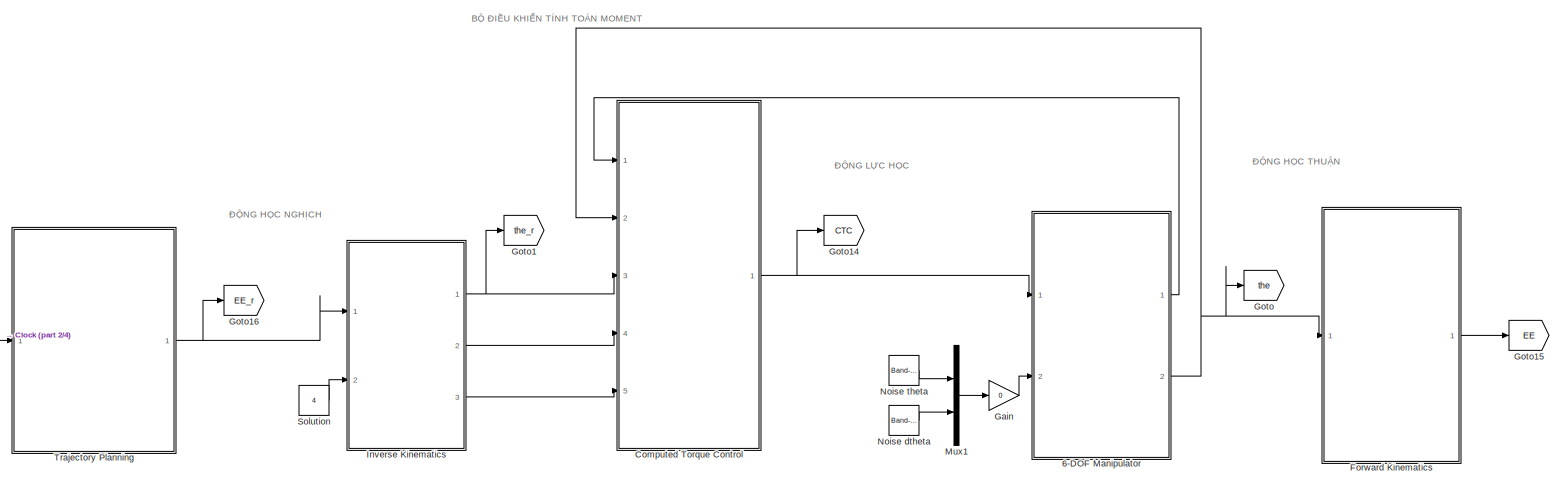
[diagram: root canvas - part 1/4, full width, top band]
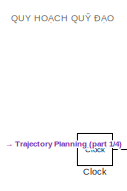
[diagram: root canvas - part 2/4, top left region]
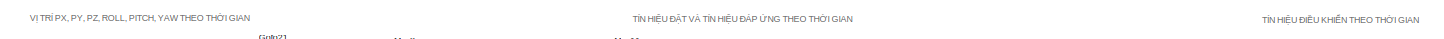
[diagram: root canvas - part 3/4, full width, middle band]
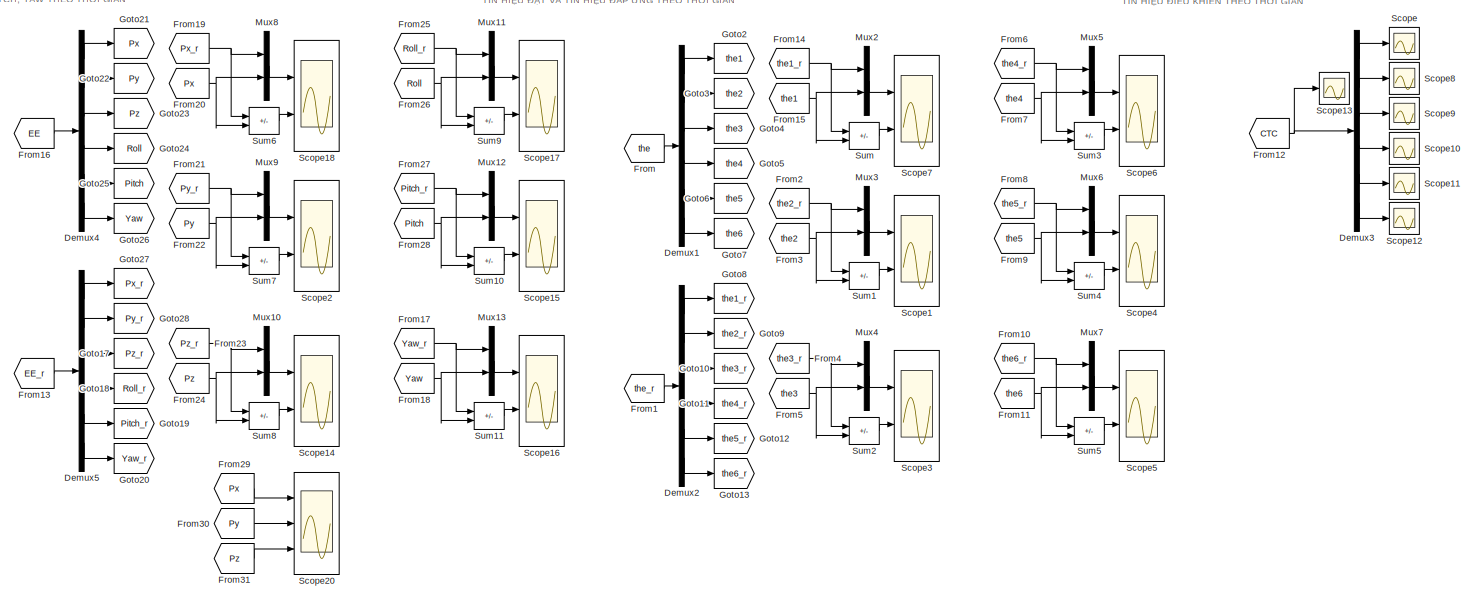
[diagram: root canvas - part 4/4, full width, bottom band]
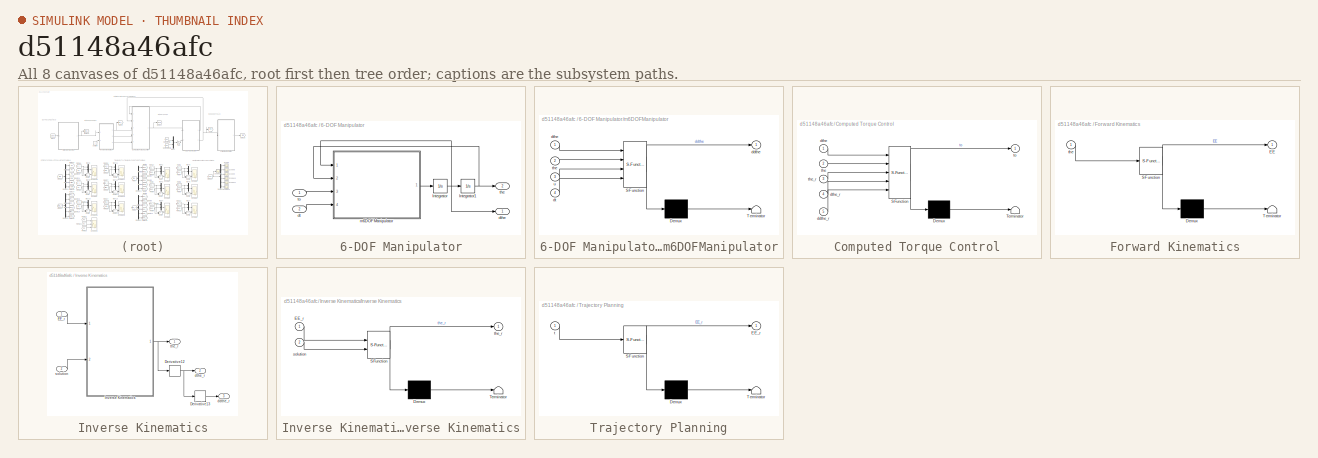
[diagram: thumbnail index - all 8 canvases of the model, root first then tree order]
MODEL slx_d51148a46afc
KIND model
CONFIG AbsTol = auto
CONFIG EnableMultiTasking = off
CONFIG FixedStep = 0.01
CONFIG MaxStep = auto
CONFIG MinStep = auto
CONFIG RelTol = 1e-3
CONFIG SampleTimeConstraint = Unconstrained
CONFIG SolverName = FixedStepAuto
CONFIG StartTime = 0.0
CONFIG StopTime = 100
BLOCK [SubSystem] 6-DOF Manipulator
  Ports = [2, 2]
  RequestExecContextInheritance = off
BLOCK [Integrator] 6-DOF Manipulator/Integrator
  InitialCondition = [0;0;0;0;0;0]
  Ports = [1, 1]
BLOCK [Integrator] 6-DOF Manipulator/Integrator1
  InitialCondition = [0.01;0.01;0.01;0.01;0.01;0.01]
  Ports = [1, 1]
BLOCK [Inport] 6-DOF Manipulator/dt
  Port = 2
BLOCK [Outport] 6-DOF Manipulator/dthe
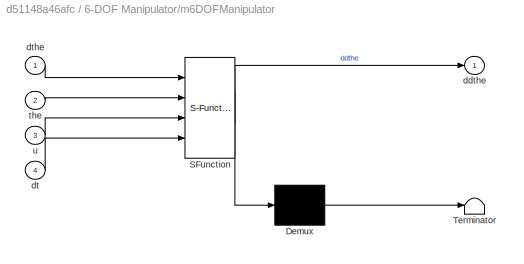
BLOCK [SubSystem] 6-DOF Manipulator/m6DOFManipulator
  ErrorFcn = Stateflow.Translate.translate
  PermitHierarchicalResolution = ExplicitOnly
  Ports = [4, 1]
  RequestExecContextInheritance = off
  SFBlockType = MATLAB Function
  TreatAsAtomicUnit = on
BLOCK [Demux] 6-DOF Manipulator/m6DOFManipulator/ Demux 
  Outputs = 1
  Ports = [1, 1]
BLOCK [S-Function] 6-DOF Manipulator/m6DOFManipulator/ SFunction 
  EnableBusSupport = on
  FunctionName = sf_sfun
  PortCounts = [4 2]
  Ports = [4, 2]
  SFcnIsStateOwnerBlock = off
  SFunctionDeploymentMode = off
  Tag = Stateflow S-Function 2
BLOCK [Terminator] 6-DOF Manipulator/m6DOFManipulator/ Terminator 
BLOCK [Outport] 6-DOF Manipulator/m6DOFManipulator/ddthe
BLOCK [Inport] 6-DOF Manipulator/m6DOFManipulator/dt
  Port = 4
BLOCK [Inport] 6-DOF Manipulator/m6DOFManipulator/dthe
BLOCK [Inport] 6-DOF Manipulator/m6DOFManipulator/the
  Port = 2
BLOCK [Inport] 6-DOF Manipulator/m6DOFManipulator/u
  Port = 3
BLOCK [Outport] 6-DOF Manipulator/the
  Port = 2
BLOCK [Inport] 6-DOF Manipulator/to
BLOCK [Clock] Clock
  DisplayTime = on
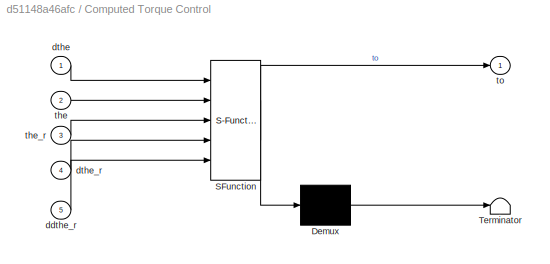
BLOCK [SubSystem] Computed Torque Control
  ErrorFcn = Stateflow.Translate.translate
  PermitHierarchicalResolution = ExplicitOnly
  Ports = [5, 1]
  RequestExecContextInheritance = off
  SFBlockType = MATLAB Function
  TreatAsAtomicUnit = on
BLOCK [Demux] Computed Torque Control/ Demux 
  Outputs = 1
  Ports = [1, 1]
BLOCK [S-Function] Computed Torque Control/ SFunction 
  EnableBusSupport = on
  FunctionName = sf_sfun
  PortCounts = [5 2]
  Ports = [5, 2]
  SFcnIsStateOwnerBlock = off
  SFunctionDeploymentMode = off
  Tag = Stateflow S-Function 1
BLOCK [Terminator] Computed Torque Control/ Terminator 
BLOCK [Inport] Computed Torque Control/ddthe_r
  Port = 5
BLOCK [Inport] Computed Torque Control/dthe
BLOCK [Inport] Computed Torque Control/dthe_r
  Port = 4
BLOCK [Inport] Computed Torque Control/the
  Port = 2
BLOCK [Inport] Computed Torque Control/the_r
  Port = 3
BLOCK [Outport] Computed Torque Control/to
BLOCK [Demux] Demux1
  Outputs = 6
  Ports = [1, 6]
BLOCK [Demux] Demux2
  Outputs = 6
  Ports = [1, 6]
BLOCK [Demux] Demux3
  Outputs = 6
  Ports = [1, 6]
BLOCK [Demux] Demux4
  Outputs = 6
  Ports = [1, 6]
BLOCK [Demux] Demux5
  Outputs = 6
  Ports = [1, 6]
BLOCK [SubSystem] Forward Kinematics
  ErrorFcn = Stateflow.Translate.translate
  PermitHierarchicalResolution = ExplicitOnly
  Ports = [1, 1]
  RequestExecContextInheritance = off
  SFBlockType = MATLAB Function
  TreatAsAtomicUnit = on
BLOCK [Demux] Forward Kinematics/ Demux 
  Outputs = 1
  Ports = [1, 1]
BLOCK [S-Function] Forward Kinematics/ SFunction 
  EnableBusSupport = on
  FunctionName = sf_sfun
  PortCounts = [1 2]
  Ports = [1, 2]
  SFcnIsStateOwnerBlock = off
  SFunctionDeploymentMode = off
  Tag = Stateflow S-Function 5
BLOCK [Terminator] Forward Kinematics/ Terminator 
BLOCK [Outport] Forward Kinematics/EE
BLOCK [Inport] Forward Kinematics/the
BLOCK [From] From
  GotoTag = the
BLOCK [From] From1
  GotoTag = the_r
BLOCK [From] From10
  GotoTag = the6_r
BLOCK [From] From11
  GotoTag = the6
BLOCK [From] From12
  GotoTag = CTC
BLOCK [From] From13
  GotoTag = EE_r
BLOCK [From] From14
  GotoTag = the1_r
BLOCK [From] From15
  GotoTag = the1
BLOCK [From] From16
  GotoTag = EE
BLOCK [From] From17
  GotoTag = Yaw_r
BLOCK [From] From18
  GotoTag = Yaw
BLOCK [From] From19
  GotoTag = Px_r
BLOCK [From] From2
  GotoTag = the2_r
BLOCK [From] From20
  GotoTag = Px
BLOCK [From] From21
  GotoTag = Py_r
BLOCK [From] From22
  GotoTag = Py
BLOCK [From] From23
  GotoTag = Pz_r
BLOCK [From] From24
  GotoTag = Pz
BLOCK [From] From25
  GotoTag = Roll_r
BLOCK [From] From26
  GotoTag = Roll
BLOCK [From] From27
  GotoTag = Pitch_r
BLOCK [From] From28
  GotoTag = Pitch
BLOCK [From] From29
  GotoTag = Px
BLOCK [From] From3
  GotoTag = the2
BLOCK [From] From30
  GotoTag = Py
BLOCK [From] From31
  GotoTag = Pz
BLOCK [From] From4
  GotoTag = the3_r
BLOCK [From] From5
  GotoTag = the3
BLOCK [From] From6
  GotoTag = the4_r
BLOCK [From] From7
  GotoTag = the4
BLOCK [From] From8
  GotoTag = the5_r
BLOCK [From] From9
  GotoTag = the5
BLOCK [Gain] Gain
  Gain = 0
BLOCK [Goto] Goto
  GotoTag = the
BLOCK [Goto] Goto1
  GotoTag = the_r
BLOCK [Goto] Goto10
  GotoTag = the3_r
BLOCK [Goto] Goto11
  GotoTag = the4_r
BLOCK [Goto] Goto12
  GotoTag = the5_r
BLOCK [Goto] Goto13
  GotoTag = the6_r
BLOCK [Goto] Goto14
  GotoTag = CTC
BLOCK [Goto] Goto15
  GotoTag = EE
BLOCK [Goto] Goto16
  GotoTag = EE_r
BLOCK [Goto] Goto17
  GotoTag = Pz_r
BLOCK [Goto] Goto18
  GotoTag = Roll_r
BLOCK [Goto] Goto19
  GotoTag = Pitch_r
BLOCK [Goto] Goto2
  GotoTag = the1
BLOCK [Goto] Goto20
  GotoTag = Yaw_r
BLOCK [Goto] Goto21
  GotoTag = Px
BLOCK [Goto] Goto22
  GotoTag = Py
BLOCK [Goto] Goto23
  GotoTag = Pz
BLOCK [Goto] Goto24
  GotoTag = Roll
BLOCK [Goto] Goto25
  GotoTag = Pitch
BLOCK [Goto] Goto26
  GotoTag = Yaw
BLOCK [Goto] Goto27
  GotoTag = Px_r
BLOCK [Goto] Goto28
  GotoTag = Py_r
BLOCK [Goto] Goto3
  GotoTag = the2
BLOCK [Goto] Goto4
  GotoTag = the3
BLOCK [Goto] Goto5
  GotoTag = the4
BLOCK [Goto] Goto6
  GotoTag = the5
BLOCK [Goto] Goto7
  GotoTag = the6
BLOCK [Goto] Goto8
  GotoTag = the1_r
BLOCK [Goto] Goto9
  GotoTag = the2_r
BLOCK [SubSystem] Inverse Kinematics
  Ports = [2, 3]
  RequestExecContextInheritance = off
BLOCK [Derivative] Inverse Kinematics/Derivative12
BLOCK [Derivative] Inverse Kinematics/Derivative13
BLOCK [Inport] Inverse Kinematics/EE_r
BLOCK [SubSystem] Inverse Kinematics/Inverse Kinematics
  ErrorFcn = Stateflow.Translate.translate
  PermitHierarchicalResolution = ExplicitOnly
  Ports = [2, 1]
  RequestExecContextInheritance = off
  SFBlockType = MATLAB Function
  TreatAsAtomicUnit = on
BLOCK [Demux] Inverse Kinematics/Inverse Kinematics/ Demux 
  Outputs = 1
  Ports = [1, 1]
BLOCK [S-Function] Inverse Kinematics/Inverse Kinematics/ SFunction 
  EnableBusSupport = on
  FunctionName = sf_sfun
  PortCounts = [2 2]
  Ports = [2, 2]
  SFcnIsStateOwnerBlock = off
  SFunctionDeploymentMode = off
  Tag = Stateflow S-Function 3
BLOCK [Terminator] Inverse Kinematics/Inverse Kinematics/ Terminator 
BLOCK [Inport] Inverse Kinematics/Inverse Kinematics/EE_r
BLOCK [Inport] Inverse Kinematics/Inverse Kinematics/solution
  Port = 2
BLOCK [Outport] Inverse Kinematics/Inverse Kinematics/the_r
BLOCK [Outport] Inverse Kinematics/ddthe_r
  Port = 3
  VectorParamsAs1DForOutWhenUnconnected = off
BLOCK [Outport] Inverse Kinematics/dthe_r
  Port = 2
  VectorParamsAs1DForOutWhenUnconnected = off
BLOCK [Inport] Inverse Kinematics/solution
  Port = 2
BLOCK [Outport] Inverse Kinematics/the_r
  VectorParamsAs1DForOutWhenUnconnected = off
BLOCK [Mux] Mux1
  DisplayOption = bar
  Inputs = 2
  Ports = [2, 1]
BLOCK [Mux] Mux10
  DisplayOption = bar
  Inputs = 2
  Ports = [2, 1]
BLOCK [Mux] Mux11
  DisplayOption = bar
  Inputs = 2
  Ports = [2, 1]
BLOCK [Mux] Mux12
  DisplayOption = bar
  Inputs = 2
  Ports = [2, 1]
BLOCK [Mux] Mux13
  DisplayOption = bar
  Inputs = 2
  Ports = [2, 1]
BLOCK [Mux] Mux2
  DisplayOption = bar
  Inputs = 2
  Ports = [2, 1]
BLOCK [Mux] Mux3
  DisplayOption = bar
  Inputs = 2
  Ports = [2, 1]
BLOCK [Mux] Mux4
  DisplayOption = bar
  Inputs = 2
  Ports = [2, 1]
BLOCK [Mux] Mux5
  DisplayOption = bar
  Inputs = 2
  Ports = [2, 1]
BLOCK [Mux] Mux6
  DisplayOption = bar
  Inputs = 2
  Ports = [2, 1]
BLOCK [Mux] Mux7
  DisplayOption = bar
  Inputs = 2
  Ports = [2, 1]
BLOCK [Mux] Mux8
  DisplayOption = bar
  Inputs = 2
  Ports = [2, 1]
BLOCK [Mux] Mux9
  DisplayOption = bar
  Inputs = 2
  Ports = [2, 1]
BLOCK [Reference] Noise dtheta  REF=simulink/Sources/Band-Limited
White Noise
  Ports = [0, 1]
  SourceBlock = simulink/Sources/Band-Limited\nWhite Noise
  SourceProductBaseCode = SL
  SourceType = Band-Limited White Noise.
BLOCK [Reference] Noise theta  REF=simulink/Sources/Band-Limited
White Noise
  Ports = [0, 1]
  SourceBlock = simulink/Sources/Band-Limited\nWhite Noise
  SourceProductBaseCode = SL
  SourceType = Band-Limited White Noise.
BLOCK [Scope] Scope
  Floating = off
  NumInputPorts = 1
  Ports = [1]
  ScopeSpecificationString = Simulink.scopes.TimeScopeBlockCfg('CurrentConfiguration', extmgr.ConfigurationSet(extmgr.Configuration('Core','General UI',true,'FigureColor',[1 1 1]),extmgr.Configuration('Core','Source UI',true),extmgr.Configuration('Sources','WiredSimulink',true,'DataLoggingVariableName','ScopeData7'),extmgr.Configuration('Visuals','Time Domain',true,'SerializedDisplays',{struct('MinYLimReal','-1.47316','MaxYLi...<+2081ch>
BLOCK [Scope] Scope1
  Floating = off
  NumInputPorts = 2
  Ports = [2]
  ScopeSpecificationString = Simulink.scopes.TimeScopeBlockCfg('CurrentConfiguration', extmgr.ConfigurationSet(extmgr.Configuration('Core','General UI',true,'FigureColor',[1 1 1]),extmgr.Configuration('Core','Source UI',true),extmgr.Configuration('Sources','WiredSimulink',true,'DataLoggingVariableName','ScopeData1'),extmgr.Configuration('Visuals','Time Domain',true,'SerializedDisplays',{struct('MinYLimReal','-0.12762','MaxYLi...<+3044ch>
BLOCK [Scope] Scope10
  Floating = off
  NumInputPorts = 1
  Ports = [1]
  ScopeSpecificationString = Simulink.scopes.TimeScopeBlockCfg('CurrentConfiguration', extmgr.ConfigurationSet(extmgr.Configuration('Core','General UI',true,'FigureColor',[1 1 1]),extmgr.Configuration('Core','Source UI',true),extmgr.Configuration('Sources','WiredSimulink',true,'DataLoggingVariableName','ScopeData10'),extmgr.Configuration('Visuals','Time Domain',true,'SerializedDisplays',{struct('MinYLimReal','-14.83288','MaxY...<+2213ch>
BLOCK [Scope] Scope11
  Floating = off
  NumInputPorts = 1
  Ports = [1]
  ScopeSpecificationString = Simulink.scopes.TimeScopeBlockCfg('CurrentConfiguration', extmgr.ConfigurationSet(extmgr.Configuration('Core','General UI',true,'FigureColor',[1 1 1]),extmgr.Configuration('Core','Source UI',true),extmgr.Configuration('Sources','WiredSimulink',true,'DataLoggingVariableName','ScopeData11'),extmgr.Configuration('Visuals','Time Domain',true,'SerializedDisplays',{struct('MinYLimReal','-5.63007','MaxYL...<+2209ch>
BLOCK [Scope] Scope12
  Floating = off
  NumInputPorts = 1
  Ports = [1]
  ScopeSpecificationString = Simulink.scopes.TimeScopeBlockCfg('CurrentConfiguration', extmgr.ConfigurationSet(extmgr.Configuration('Core','General UI',true,'FigureColor',[1 1 1]),extmgr.Configuration('Core','Source UI',true),extmgr.Configuration('Sources','WiredSimulink',true,'DataLoggingVariableName','ScopeData12'),extmgr.Configuration('Visuals','Time Domain',true,'SerializedDisplays',{struct('MinYLimReal','-14.82568','MaxY...<+2211ch>
BLOCK [Scope] Scope13
  Floating = off
  NumInputPorts = 1
  Ports = [1]
  ScopeSpecificationString = Simulink.scopes.TimeScopeBlockCfg('CurrentConfiguration', extmgr.ConfigurationSet(extmgr.Configuration('Core','General UI',true,'FigureColor',[1 1 1]),extmgr.Configuration('Core','Source UI',true),extmgr.Configuration('Sources','WiredSimulink',true,'DataLoggingVariableName','ScopeData13'),extmgr.Configuration('Visuals','Time Domain',true,'SerializedDisplays',{struct('MinYLimReal','-15.89629','MaxY...<+2022ch>
BLOCK [Scope] Scope14
  Floating = off
  NumInputPorts = 2
  Ports = [2]
  ScopeSpecificationString = Simulink.scopes.TimeScopeBlockCfg('CurrentConfiguration', extmgr.ConfigurationSet(extmgr.Configuration('Core','General UI',true,'FigureColor',[1 1 1]),extmgr.Configuration('Core','Source UI',true),extmgr.Configuration('Sources','WiredSimulink',true),extmgr.Configuration('Visuals','Time Domain',true,'SerializedDisplays',{struct('MinYLimReal','587.5','MaxYLimReal','712.5','YLabelReal','','MinYLimMag...<+2985ch>
BLOCK [Scope] Scope15
  Floating = off
  NumInputPorts = 2
  Ports = [2]
  ScopeSpecificationString = Simulink.scopes.TimeScopeBlockCfg('CurrentConfiguration', extmgr.ConfigurationSet(extmgr.Configuration('Core','General UI',true,'FigureColor',[1 1 1]),extmgr.Configuration('Core','Source UI',true),extmgr.Configuration('Sources','WiredSimulink',true,'DataLoggingVariableName','ScopeData14'),extmgr.Configuration('Visuals','Time Domain',true,'SerializedDisplays',{struct('MinYLimReal','-1.80601','MaxYL...<+3051ch>
BLOCK [Scope] Scope16
  Floating = off
  NumInputPorts = 2
  Ports = [2]
  ScopeSpecificationString = Simulink.scopes.TimeScopeBlockCfg('CurrentConfiguration', extmgr.ConfigurationSet(extmgr.Configuration('Core','General UI',true,'FigureColor',[1 1 1]),extmgr.Configuration('Core','Source UI',true),extmgr.Configuration('Sources','WiredSimulink',true,'DataLoggingVariableName','ScopeData15'),extmgr.Configuration('Visuals','Time Domain',true,'SerializedDisplays',{struct('MinYLimReal','-0.88719','MaxYL...<+3039ch>
BLOCK [Scope] Scope17
  Floating = off
  NumInputPorts = 2
  Ports = [2]
  ScopeSpecificationString = Simulink.scopes.TimeScopeBlockCfg('CurrentConfiguration', extmgr.ConfigurationSet(extmgr.Configuration('Core','General UI',true,'FigureColor',[1 1 1]),extmgr.Configuration('Core','Source UI',true),extmgr.Configuration('Sources','WiredSimulink',true,'DataLoggingVariableName','ScopeData16'),extmgr.Configuration('Visuals','Time Domain',true,'SerializedDisplays',{struct('MinYLimReal','-3.87422','MaxYL...<+3045ch>
BLOCK [Scope] Scope18
  Floating = off
  NumInputPorts = 2
  Ports = [2]
  ScopeSpecificationString = Simulink.scopes.TimeScopeBlockCfg('CurrentConfiguration', extmgr.ConfigurationSet(extmgr.Configuration('Core','General UI',true,'FigureColor',[1 1 1]),extmgr.Configuration('Core','Source UI',true),extmgr.Configuration('Sources','WiredSimulink',true,'DataLoggingVariableName','ScopeData17'),extmgr.Configuration('Visuals','Time Domain',true,'SerializedDisplays',{struct('MinYLimReal','393.20224','MaxY...<+3039ch>
BLOCK [Scope] Scope2
  Floating = off
  NumInputPorts = 2
  Ports = [2]
  ScopeSpecificationString = Simulink.scopes.TimeScopeBlockCfg('CurrentConfiguration', extmgr.ConfigurationSet(extmgr.Configuration('Core','General UI',true,'FigureColor',[1 1 1]),extmgr.Configuration('Core','Source UI',true),extmgr.Configuration('Sources','WiredSimulink',true,'DataLoggingVariableName','ScopeData18'),extmgr.Configuration('Visuals','Time Domain',true,'SerializedDisplays',{struct('MinYLimReal','-62.5','MaxYLimR...<+3025ch>
BLOCK [Scope] Scope20
  Floating = off
  NumInputPorts = 3
  Ports = [3]
  ScopeSpecificationString = Simulink.scopes.TimeScopeBlockCfg('CurrentConfiguration', extmgr.ConfigurationSet(extmgr.Configuration('Core','General UI',true),extmgr.Configuration('Core','Source UI',true),extmgr.Configuration('Sources','WiredSimulink',true,'DataLoggingVariableName','CTC','DataLogging',true,'DataLoggingSaveFormat','Structure'),extmgr.Configuration('Visuals','Time Domain',true,'SerializedDisplays',{struct('MinYL...<+1495ch>
BLOCK [Scope] Scope3
  Floating = off
  NumInputPorts = 2
  Ports = [2]
  ScopeSpecificationString = Simulink.scopes.TimeScopeBlockCfg('CurrentConfiguration', extmgr.ConfigurationSet(extmgr.Configuration('Core','General UI',true,'FigureColor',[1 1 1]),extmgr.Configuration('Core','Source UI',true),extmgr.Configuration('Sources','WiredSimulink',true,'DataLoggingVariableName','ScopeData2'),extmgr.Configuration('Visuals','Time Domain',true,'SerializedDisplays',{struct('MinYLimReal','-0.06363','MaxYLi...<+3044ch>
BLOCK [Scope] Scope4
  Floating = off
  NumInputPorts = 2
  Ports = [2]
  ScopeSpecificationString = Simulink.scopes.TimeScopeBlockCfg('CurrentConfiguration', extmgr.ConfigurationSet(extmgr.Configuration('Core','General UI',true,'FigureColor',[1 1 1]),extmgr.Configuration('Core','Source UI',true),extmgr.Configuration('Sources','WiredSimulink',true,'DataLoggingVariableName','ScopeData3'),extmgr.Configuration('Visuals','Time Domain',true,'SerializedDisplays',{struct('MinYLimReal','-1.61812','MaxYLi...<+3043ch>
BLOCK [Scope] Scope5
  Floating = off
  NumInputPorts = 2
  Ports = [2]
  ScopeSpecificationString = Simulink.scopes.TimeScopeBlockCfg('CurrentConfiguration', extmgr.ConfigurationSet(extmgr.Configuration('Core','General UI',true,'FigureColor',[1 1 1]),extmgr.Configuration('Core','Source UI',true),extmgr.Configuration('Sources','WiredSimulink',true,'DataLoggingVariableName','ScopeData4'),extmgr.Configuration('Visuals','Time Domain',true,'SerializedDisplays',{struct('MinYLimReal','-3.328','MaxYLimR...<+3039ch>
BLOCK [Scope] Scope6
  Floating = off
  NumInputPorts = 2
  Ports = [2]
  ScopeSpecificationString = Simulink.scopes.TimeScopeBlockCfg('CurrentConfiguration', extmgr.ConfigurationSet(extmgr.Configuration('Core','General UI',true,'FigureColor',[1 1 1]),extmgr.Configuration('Core','Source UI',true),extmgr.Configuration('Sources','WiredSimulink',true,'DataLoggingVariableName','ScopeData5'),extmgr.Configuration('Visuals','Time Domain',true,'SerializedDisplays',{struct('MinYLimReal','-0.03217','MaxYLi...<+3042ch>
BLOCK [Scope] Scope7
  Floating = off
  NumInputPorts = 2
  Ports = [2]
  ScopeSpecificationString = Simulink.scopes.TimeScopeBlockCfg('CurrentConfiguration', extmgr.ConfigurationSet(extmgr.Configuration('Core','General UI',true,'FigureColor',[1 1 1]),extmgr.Configuration('Core','Source UI',true),extmgr.Configuration('Sources','WiredSimulink',true,'DataLoggingVariableName','ScopeData6'),extmgr.Configuration('Visuals','Time Domain',true,'SerializedDisplays',{struct('MinYLimReal','-0.12717','MaxYLi...<+3044ch>
BLOCK [Scope] Scope8
  Floating = off
  NumInputPorts = 1
  Ports = [1]
  ScopeSpecificationString = Simulink.scopes.TimeScopeBlockCfg('CurrentConfiguration', extmgr.ConfigurationSet(extmgr.Configuration('Core','General UI',true,'FigureColor',[1 1 1]),extmgr.Configuration('Core','Source UI',true),extmgr.Configuration('Sources','WiredSimulink',true,'DataLoggingVariableName','ScopeData8'),extmgr.Configuration('Visuals','Time Domain',true,'SerializedDisplays',{struct('MinYLimReal','3.52144','MaxYLim...<+2206ch>
BLOCK [Scope] Scope9
  Floating = off
  NumInputPorts = 1
  Ports = [1]
  ScopeSpecificationString = Simulink.scopes.TimeScopeBlockCfg('CurrentConfiguration', extmgr.ConfigurationSet(extmgr.Configuration('Core','General UI',true,'FigureColor',[1 1 1]),extmgr.Configuration('Core','Source UI',true),extmgr.Configuration('Sources','WiredSimulink',true,'DataLoggingVariableName','ScopeData9'),extmgr.Configuration('Visuals','Time Domain',true,'SerializedDisplays',{struct('MinYLimReal','4.66995','MaxYLim...<+2206ch>
BLOCK [Constant] Solution
  Value = 4
BLOCK [Sum] Sum
  IconShape = rectangular
  Inputs = +-
  Ports = [2, 1]
BLOCK [Sum] Sum1
  IconShape = rectangular
  Inputs = +-
  Ports = [2, 1]
BLOCK [Sum] Sum10
  IconShape = rectangular
  Inputs = +-
  Ports = [2, 1]
BLOCK [Sum] Sum11
  IconShape = rectangular
  Inputs = +-
  Ports = [2, 1]
BLOCK [Sum] Sum2
  IconShape = rectangular
  Inputs = +-
  Ports = [2, 1]
BLOCK [Sum] Sum3
  IconShape = rectangular
  Inputs = +-
  Ports = [2, 1]
BLOCK [Sum] Sum4
  IconShape = rectangular
  Inputs = +-
  Ports = [2, 1]
BLOCK [Sum] Sum5
  IconShape = rectangular
  Inputs = +-
  Ports = [2, 1]
BLOCK [Sum] Sum6
  IconShape = rectangular
  Inputs = +-
  Ports = [2, 1]
BLOCK [Sum] Sum7
  IconShape = rectangular
  Inputs = +-
  Ports = [2, 1]
BLOCK [Sum] Sum8
  IconShape = rectangular
  Inputs = +-
  Ports = [2, 1]
BLOCK [Sum] Sum9
  IconShape = rectangular
  Inputs = +-
  Ports = [2, 1]
BLOCK [SubSystem] Trajectory Planning
  ErrorFcn = Stateflow.Translate.translate
  PermitHierarchicalResolution = ExplicitOnly
  Ports = [1, 1]
  RequestExecContextInheritance = off
  SFBlockType = MATLAB Function
  TreatAsAtomicUnit = on
BLOCK [Demux] Trajectory Planning/ Demux 
  Outputs = 1
  Ports = [1, 1]
BLOCK [S-Function] Trajectory Planning/ SFunction 
  EnableBusSupport = on
  FunctionName = sf_sfun
  PortCounts = [1 2]
  Ports = [1, 2]
  SFcnIsStateOwnerBlock = off
  SFunctionDeploymentMode = off
  Tag = Stateflow S-Function 4
BLOCK [Terminator] Trajectory Planning/ Terminator 
BLOCK [Outport] Trajectory Planning/EE_r
BLOCK [Inport] Trajectory Planning/t
ANNOTATION (root): BỘ ĐIỀU KHIỂN TÍNH TOÁN MOMENT
ANNOTATION (root): QUY HOẠCH QUỸ ĐẠO
ANNOTATION (root): TÍN HIỆU ĐIỀU KHIỂN THEO THỜI GIAN
ANNOTATION (root): TÍN HIỆU ĐẶT VÀ TÍN HIỆU ĐÁP ỨNG THEO THỜI GIAN
ANNOTATION (root): VỊ TRÍ PX, PY, PZ, ROLL, PITCH, YAW THEO THỜI GIAN
ANNOTATION (root): ĐỘNG HỌC NGHỊCH
ANNOTATION (root): ĐỘNG HỌC THUẬN
ANNOTATION (root): ĐỘNG LỰC HỌC
NET 6-DOF Manipulator/Integrator1:1 -> 6-DOF Manipulator/m6DOFManipulator:2, 6-DOF Manipulator/the:1
NET 6-DOF Manipulator/Integrator:1 -> 6-DOF Manipulator/Integrator1:1, 6-DOF Manipulator/dthe:1, 6-DOF Manipulator/m6DOFManipulator:1
LINE 6-DOF Manipulator/dt:1 -> 6-DOF Manipulator/m6DOFManipulator:4
LINE 6-DOF Manipulator/m6DOFManipulator:1 -> 6-DOF Manipulator/Integrator:1
LINE 6-DOF Manipulator/to:1 -> 6-DOF Manipulator/m6DOFManipulator:3
LINE 6-DOF Manipulator:1 -> Computed Torque Control:1
NET 6-DOF Manipulator:2 -> Computed Torque Control:2, Forward Kinematics:1, Goto:1
LINE Clock:1 -> Trajectory Planning:1
NET Computed Torque Control:1 -> 6-DOF Manipulator:1, Goto14:1
LINE Demux1:1 -> Goto2:1
LINE Demux1:2 -> Goto3:1
LINE Demux1:3 -> Goto4:1
LINE Demux1:4 -> Goto5:1
LINE Demux1:5 -> Goto6:1
LINE Demux1:6 -> Goto7:1
LINE Demux2:1 -> Goto8:1
LINE Demux2:2 -> Goto9:1
LINE Demux2:3 -> Goto10:1
LINE Demux2:4 -> Goto11:1
LINE Demux2:5 -> Goto12:1
LINE Demux2:6 -> Goto13:1
LINE Demux3:1 -> Scope:1
LINE Demux3:2 -> Scope8:1
LINE Demux3:3 -> Scope9:1
LINE Demux3:4 -> Scope10:1
LINE Demux3:5 -> Scope11:1
LINE Demux3:6 -> Scope12:1
LINE Demux4:1 -> Goto21:1
LINE Demux4:2 -> Goto22:1
LINE Demux4:3 -> Goto23:1
LINE Demux4:4 -> Goto24:1
LINE Demux4:5 -> Goto25:1
LINE Demux4:6 -> Goto26:1
LINE Demux5:1 -> Goto27:1
LINE Demux5:2 -> Goto28:1
LINE Demux5:3 -> Goto17:1
LINE Demux5:4 -> Goto18:1
LINE Demux5:5 -> Goto19:1
LINE Demux5:6 -> Goto20:1
LINE Forward Kinematics:1 -> Goto15:1
NET From10:1 -> Mux7:1, Sum5:1
NET From11:1 -> Mux7:2, Sum5:2
NET From12:1 -> Demux3:1, Scope13:1
LINE From13:1 -> Demux5:1
NET From14:1 -> Mux2:1, Sum:1
NET From15:1 -> Mux2:2, Sum:2
LINE From16:1 -> Demux4:1
NET From17:1 -> Mux13:1, Sum11:1
NET From18:1 -> Mux13:2, Sum11:2
NET From19:1 -> Mux8:1, Sum6:1
LINE From1:1 -> Demux2:1
NET From20:1 -> Mux8:2, Sum6:2
NET From21:1 -> Mux9:1, Sum7:1
NET From22:1 -> Mux9:2, Sum7:2
NET From23:1 -> Mux10:1, Sum8:1
NET From24:1 -> Mux10:2, Sum8:2
NET From25:1 -> Mux11:1, Sum9:1
NET From26:1 -> Mux11:2, Sum9:2
NET From27:1 -> Mux12:1, Sum10:1
NET From28:1 -> Mux12:2, Sum10:2
LINE From29:1 -> Scope20:1
NET From2:1 -> Mux3:1, Sum1:1
LINE From30:1 -> Scope20:2
LINE From31:1 -> Scope20:3
NET From3:1 -> Mux3:2, Sum1:2
NET From4:1 -> Mux4:1, Sum2:1
NET From5:1 -> Mux4:2, Sum2:2
NET From6:1 -> Mux5:1, Sum3:1
NET From7:1 -> Mux5:2, Sum3:2
NET From8:1 -> Mux6:1, Sum4:1
NET From9:1 -> Mux6:2, Sum4:2
LINE From:1 -> Demux1:1
LINE Gain:1 -> 6-DOF Manipulator:2
NET Inverse Kinematics/Derivative12:1 -> Inverse Kinematics/Derivative13:1, Inverse Kinematics/dthe_r:1
LINE Inverse Kinematics/Derivative13:1 -> Inverse Kinematics/ddthe_r:1
LINE Inverse Kinematics/EE_r:1 -> Inverse Kinematics/Inverse Kinematics:1
NET Inverse Kinematics/Inverse Kinematics:1 -> Inverse Kinematics/Derivative12:1, Inverse Kinematics/the_r:1
LINE Inverse Kinematics/solution:1 -> Inverse Kinematics/Inverse Kinematics:2
NET Inverse Kinematics:1 -> Computed Torque Control:3, Goto1:1
LINE Inverse Kinematics:2 -> Computed Torque Control:4
LINE Inverse Kinematics:3 -> Computed Torque Control:5
LINE Mux10:1 -> Scope14:1
LINE Mux11:1 -> Scope17:1
LINE Mux12:1 -> Scope15:1
LINE Mux13:1 -> Scope16:1
LINE Mux1:1 -> Gain:1
LINE Mux2:1 -> Scope7:1
LINE Mux3:1 -> Scope1:1
LINE Mux4:1 -> Scope3:1
LINE Mux5:1 -> Scope6:1
LINE Mux6:1 -> Scope4:1
LINE Mux7:1 -> Scope5:1
LINE Mux8:1 -> Scope18:1
LINE Mux9:1 -> Scope2:1
LINE Noise dtheta:1 -> Mux1:2
LINE Noise theta:1 -> Mux1:1
LINE Solution:1 -> Inverse Kinematics:2
LINE Sum10:1 -> Scope15:2
LINE Sum11:1 -> Scope16:2
LINE Sum1:1 -> Scope1:2
LINE Sum2:1 -> Scope3:2
LINE Sum3:1 -> Scope6:2
LINE Sum4:1 -> Scope4:2
LINE Sum5:1 -> Scope5:2
LINE Sum6:1 -> Scope18:2
LINE Sum7:1 -> Scope2:2
LINE Sum8:1 -> Scope14:2
LINE Sum9:1 -> Scope17:2
LINE Sum:1 -> Scope7:2
NET Trajectory Planning:1 -> Goto16:1, Inverse Kinematics:1
note: NET lines group one-source signal fan-out (src -> all destinations, sorted); 1:1 wires keep LINE
CHART Computed Torque Control states=1 transitions=1
  STATE_LABEL 'eML_blk_kernel()'
  STATE_LABEL 'SCRIPT:\nfunction to = CTC(dthe,the,the_r,dthe_r,ddthe_r)\n%% Declare manipulator dynamics:\nm1=0.1; m2=0.1; m3=0.1; m4=0.1; m5=0.1; m6=0.1;\nI1=0; I2=0; I3=0; I4=0; I5=0; I6=1;\na1=0.75; a2=2.70; a3=0.90; d1=3.35; d4=2.95; d7=0.80;\ng=9.81;\n%%\ne1 = the(1); e2 = the(2); e3 = the(3);\ne4 = the(4); e5 = the(5); e6 = the(6);\nde1 = dthe(1); de2 = dthe(2); de3 = dthe(3);\nde4 = dthe(4); de5 = dthe(5); de6 = dt...<+3608ch>'
CHART 6-DOF Manipulator/m6DOFManipulator states=1 transitions=1
  STATE_LABEL 'eML_blk_kernel()'
  STATE_LABEL 'SCRIPT:\nfunction ddthe  = m6DOFManipulator(dthe,the,u,dt)\n%% Declare:\nm1=0.1; m2=0.1; m3=0.1; m4=0.1; m5=0.1; m6=0.1;\nI1=0; I2=0; I3=0; I4=0; I5=0; I6=1;\na1=0.75; a2=2.70; a3=0.90; d1=3.35; d4=2.95; d7=0.80;\ng=9.81;\n%%\ne1 = the(1) + dt(1); e2 = the(2) + dt(1); e3 = the(3) + dt(1);\ne4 = the(4) + dt(1); e5 = the(5) + dt(1); e6 = the(6) + dt(1);\nde1 = dthe(1) + dt(2); de2 = dthe(2) + dt(2); de3 = dth...<+3608ch>'
CHART Inverse Kinematics/Inverse Kinematics states=1 transitions=1
  STATE_LABEL 'eML_blk_kernel()'
  STATE_LABEL 'SCRIPT:\nfunction the_r  = fcn(EE_r,solution)\na1=75; a2=270; a3=90; d1=335; d4=295; d7=80;\nemt = zeros(8,6);\nm = 0;\npx = EE_r(1);\npy = EE_r(2);\npz = EE_r(3);\nroll = EE_r(4);\npitch = EE_r(5);\nyaw =  EE_r(6);\nr11 = cos(yaw)*cos(pitch);\nr21 = sin(yaw)*cos(pitch);\nr31 = -sin(pitch);\nr12 = cos(yaw)*sin(pitch)*sin(roll) - sin(yaw)*cos(roll);\nr22 = sin(yaw)*sin(pitch)*sin(roll) + cos(yaw)*cos(roll);\nr32 =...<+1937ch>'
CHART Trajectory Planning states=1 transitions=1
  STATE_LABEL 'eML_blk_kernel()'
  STATE_LABEL 'SCRIPT:\nfunction EE_r = TrajectoryPlanning(t)\nf=0.01; %hz\nPx_r = 400;\nPy_r = 0+50*cos(2*pi*f*t);\nPz_r = 650+50*sin(2*pi*f*t);\nroll_r=0.5;\npitch_r=0.5;\nyaw_r=0.5;\nEE_r = [Px_r,Py_r,Pz_r,roll_r,pitch_r,yaw_r];'
CHART Forward Kinematics states=1 transitions=1
  STATE_LABEL 'eML_blk_kernel()'
  STATE_LABEL 'SCRIPT:\nfunction EE  = FK_6DOF(the)\nthe1 = the(1);\nthe2 = the(2);\nthe3 = the(3);\nthe4 = the(4);\nthe5 = the(5);\nthe6 = the(6);\na1=75; a2=270; a3=90; d1=335; d4=295; d7=80;\n\nT_0_EE = ...\n[ cos(the6)*(cos(the5)*sin(the1)*sin(the4) + cos(the2 + the3)*cos(the1)*sin(the5) + cos(the1)*cos(the2)*cos(the4)*cos(the5)*sin(the3) + cos(the1)*cos(the3)*cos(the4)*cos(the5)*sin(the2)) - sin(the6)*(cos(the1)*cos(t...<+3608ch>'
CHART  states=0 transitions=0
CHART  states=0 transitions=0
CHART  states=0 transitions=0
CHART  states=0 transitions=0
CHART  states=0 transitions=0
